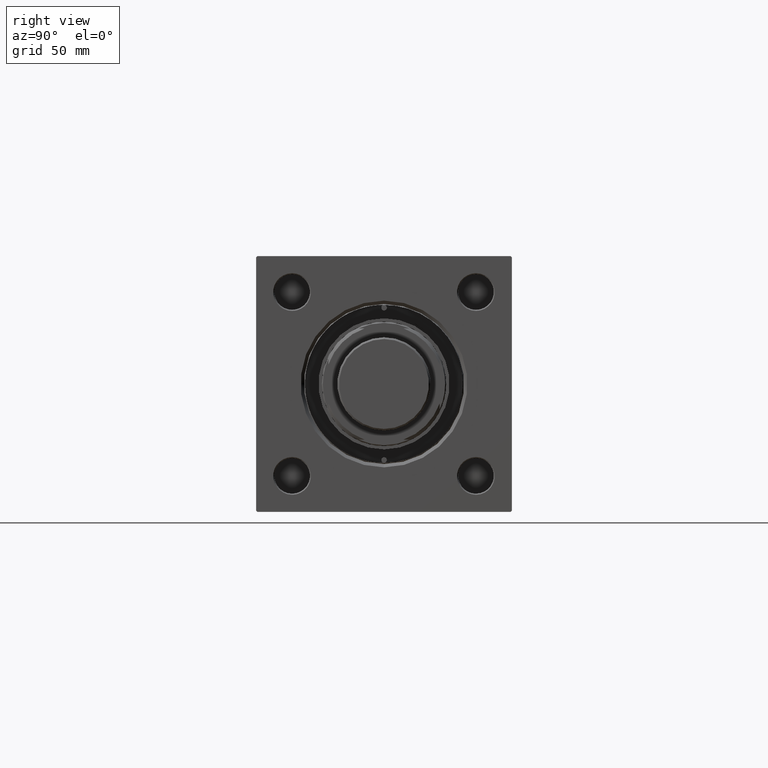
[diagram: clean part render]
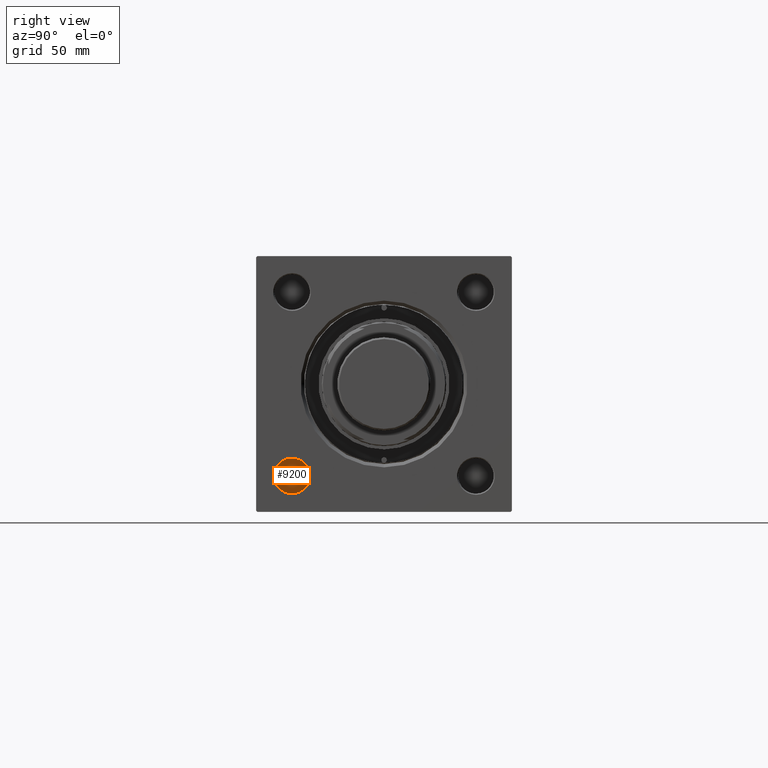
[diagram: same view with one face highlighted and labeled with its STEP entity id]
A machine part, right view. The second image highlights one B-rep face of the part: STEP entity #9200.
In plain terms, the highlighted planar face has unit normal (1, 0, 0).
Its self-contained STEP definition (entity closure, byte-faithful):
#2181 = CARTESIAN_POINT ( 'NONE',  ( 149.0000000000000000, -41.34999999999999432, -41.35000000000000142 ) ) ;
#5110 = CARTESIAN_POINT ( 'NONE',  ( 149.0000000000000000, -41.34999999999999432, -49.35000000000000853 ) ) ;
#8740 = DIRECTION ( 'NONE',  ( 0.000000000000000000, 0.000000000000000000, -1.000000000000000000 ) ) ;
#9167 = CARTESIAN_POINT ( 'NONE',  ( 149.0000000000000000, -41.34999999999999432, -33.35000000000000142 ) ) ;
#9200 = ADVANCED_FACE ( 'NONE', ( #45987 ), #37693, .T. ) ;
#9514 = CIRCLE ( 'NONE', #11189, 8.000000000000000000 ) ;
#11154 = EDGE_CURVE ( 'NONE', #20063, #23699, #25452, .T. ) ;
#11189 = AXIS2_PLACEMENT_3D ( 'NONE', #23162, #22644, #19020 ) ;
#16781 = CARTESIAN_POINT ( 'NONE',  ( 149.0000000000000000, -41.34999999999999432, -41.35000000000000142 ) ) ;
#17106 = AXIS2_PLACEMENT_3D ( 'NONE', #2181, #26549, #45734 ) ;
#18115 = EDGE_CURVE ( 'NONE', #23699, #20063, #9514, .T. ) ;
#19020 = DIRECTION ( 'NONE',  ( 0.000000000000000000, 0.000000000000000000, -1.000000000000000000 ) ) ;
#20063 = VERTEX_POINT ( 'NONE', #9167 ) ;
#20404 = DIRECTION ( 'NONE',  ( 1.000000000000000000, 0.000000000000000000, 0.000000000000000000 ) ) ;
#22644 = DIRECTION ( 'NONE',  ( 1.000000000000000000, 0.000000000000000000, 0.000000000000000000 ) ) ;
#23162 = CARTESIAN_POINT ( 'NONE',  ( 149.0000000000000000, -41.34999999999999432, -41.35000000000000142 ) ) ;
#23699 = VERTEX_POINT ( 'NONE', #5110 ) ;
#23792 = AXIS2_PLACEMENT_3D ( 'NONE', #16781, #20404, #8740 ) ;
#25270 = EDGE_LOOP ( 'NONE', ( #29264, #35316 ) ) ;
#25452 = CIRCLE ( 'NONE', #23792, 8.000000000000000000 ) ;
#26549 = DIRECTION ( 'NONE',  ( 1.000000000000000000, 0.000000000000000000, 0.000000000000000000 ) ) ;
#29264 = ORIENTED_EDGE ( 'NONE', *, *, #18115, .T. ) ;
#35316 = ORIENTED_EDGE ( 'NONE', *, *, #11154, .T. ) ;
#37693 = PLANE ( 'NONE',  #17106 ) ;
#45734 = DIRECTION ( 'NONE',  ( 0.000000000000000000, 0.000000000000000000, -1.000000000000000000 ) ) ;
#45987 = FACE_OUTER_BOUND ( 'NONE', #25270, .T. ) ;